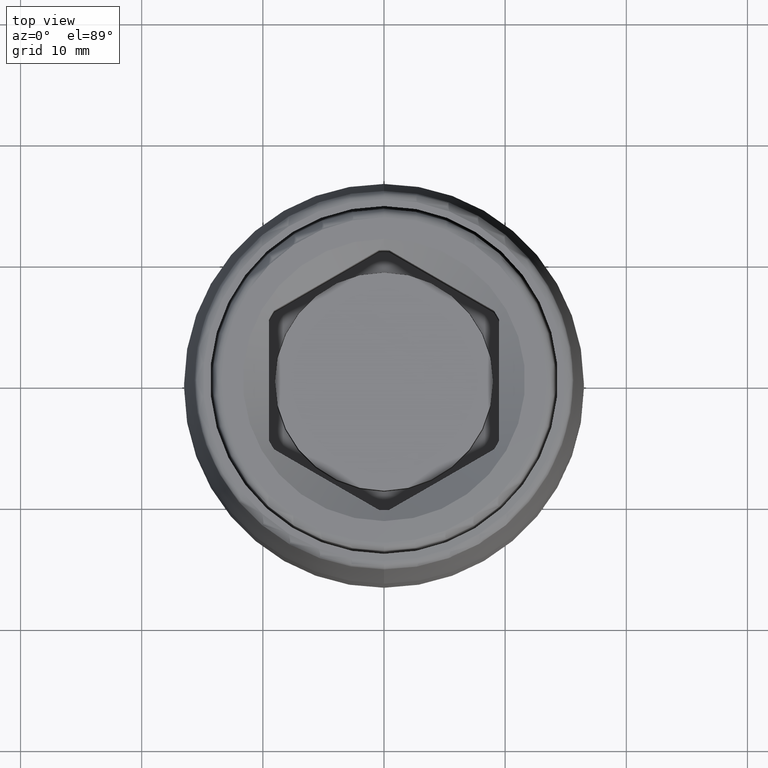
[diagram: clean part render]
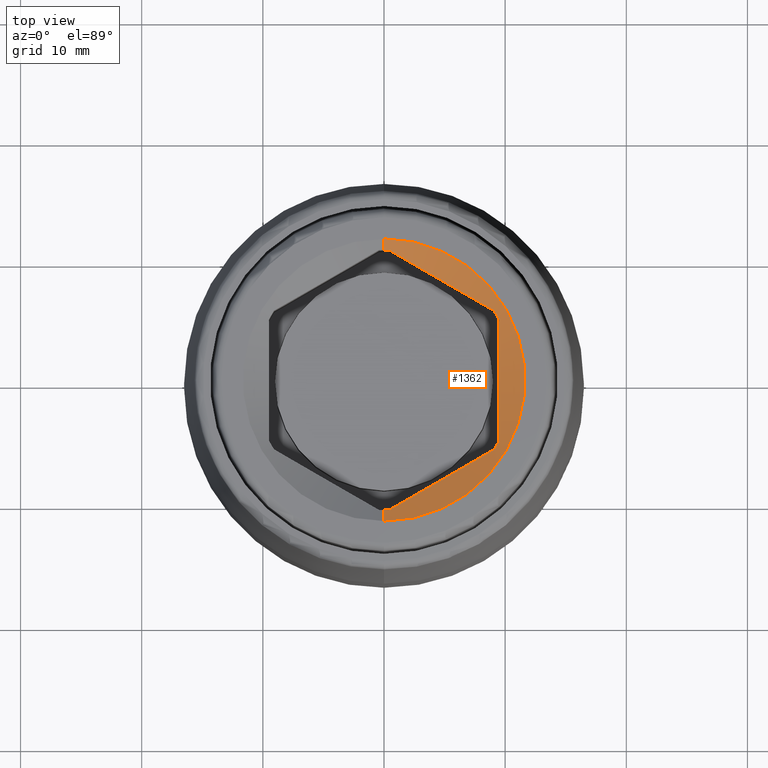
[diagram: same view with one face highlighted and labeled with its STEP entity id]
A machine part, top view. The second image highlights one B-rep face of the part: STEP entity #1362.
In plain terms, the highlighted conical surface has half-angle 60 deg.
Its self-contained STEP definition (entity closure, byte-faithful):
#58=DIRECTION('',(0.E0,-8.660254037844E-1,5.E-1));
#59=VECTOR('',#58,1.056550992617E0);
#60=CARTESIAN_POINT('',(0.E0,-1.0735E1,3.747172450369E1));
#61=LINE('',#60,#59);
#62=DIRECTION('',(0.E0,8.660254037844E-1,5.E-1));
#63=VECTOR('',#62,1.056550992617E0);
#64=CARTESIAN_POINT('',(0.E0,1.0735E1,3.747172450369E1));
#65=LINE('',#64,#63);
#154=CARTESIAN_POINT('',(0.E0,0.E0,3.747172450369E1));
#155=DIRECTION('',(0.E0,0.E0,1.E0));
#156=DIRECTION('',(3.919139298327E-2,9.992317222327E-1,0.E0));
#157=AXIS2_PLACEMENT_3D('',#154,#155,#156);
#168=CARTESIAN_POINT('',(0.E0,0.E0,3.747172450369E1));
#169=DIRECTION('',(0.E0,0.E0,1.E0));
#170=DIRECTION('',(0.E0,-1.E0,0.E0));
#171=AXIS2_PLACEMENT_3D('',#168,#169,#170);
#206=CARTESIAN_POINT('',(9.079280396325E0,-5.727730133737E0,3.747172450369E1));
#207=CARTESIAN_POINT('',(8.649952098188E0,-5.975602942237E0,3.733843949942E1));
#208=CARTESIAN_POINT('',(7.802883339064E0,-6.464658318339E0,3.710690814906E1));
#209=CARTESIAN_POINT('',(6.580214498321E0,-7.170566502672E0,3.687409742572E1));
#210=CARTESIAN_POINT('',(5.359891539634E0,-7.875120291368E0,3.675368202986E1));
#211=CARTESIAN_POINT('',(4.140106761944E0,-8.579363361121E0,3.675368205119E1));
#212=CARTESIAN_POINT('',(2.919781804618E0,-9.283918303731E0,3.687409796258E1));
#213=CARTESIAN_POINT('',(1.697114961940E0,-9.989825334481E0,3.710690861353E1));
#214=CARTESIAN_POINT('',(8.500472244717E-1,-1.047888012073E1,3.733843970970E1));
#215=CARTESIAN_POINT('',(4.207196036754E-1,-1.072675253817E1,3.747172450369E1));
#221=CARTESIAN_POINT('',(0.E0,0.E0,3.747172450369E1));
#222=DIRECTION('',(0.E0,0.E0,1.E0));
#223=DIRECTION('',(8.457643592291E-1,-5.335566030495E-1,0.E0));
#224=AXIS2_PLACEMENT_3D('',#221,#222,#223);
#230=CARTESIAN_POINT('',(9.5E0,4.999022404431E0,3.747172450369E1));
#231=CARTESIAN_POINT('',(9.5E0,4.503276358970E0,3.733843938423E1));
#232=CARTESIAN_POINT('',(9.5E0,3.525165048507E0,3.710690795781E1));
#233=CARTESIAN_POINT('',(9.5E0,2.113349740460E0,3.687409745813E1));
#234=CARTESIAN_POINT('',(9.5E0,7.042423749558E-1,3.675368204065E1));
#235=CARTESIAN_POINT('',(9.5E0,-7.042435590032E-1,3.675368204858E1));
#236=CARTESIAN_POINT('',(9.5E0,-2.113352474044E0,3.687409780376E1));
#237=CARTESIAN_POINT('',(9.5E0,-3.525166145713E0,3.710690822457E1));
#238=CARTESIAN_POINT('',(9.5E0,-4.503276794482E0,3.733843950132E1));
#239=CARTESIAN_POINT('',(9.5E0,-4.999022404431E0,3.747172450369E1));
#245=CARTESIAN_POINT('',(0.E0,0.E0,3.747172450369E1));
#246=DIRECTION('',(0.E0,0.E0,1.E0));
#247=DIRECTION('',(8.849557522124E-1,4.656751191831E-1,0.E0));
#248=AXIS2_PLACEMENT_3D('',#245,#246,#247);
#254=CARTESIAN_POINT('',(4.207196036754E-1,1.072675253817E1,3.747172450369E1));
#255=CARTESIAN_POINT('',(8.500473241885E-1,1.047888006316E1,3.733843967875E1));
#256=CARTESIAN_POINT('',(1.697115248215E0,9.989825169200E0,3.710690850424E1));
#257=CARTESIAN_POINT('',(2.919783786532E0,9.283917159473E0,3.687409766312E1));
#258=CARTESIAN_POINT('',(4.140107606194E0,8.579362873693E0,3.675368204670E1));
#259=CARTESIAN_POINT('',(5.359892527726E0,7.875119720893E0,3.675368203440E1));
#260=CARTESIAN_POINT('',(6.580216863321E0,7.170565137238E0,3.687409776508E1));
#261=CARTESIAN_POINT('',(7.802884562943E0,6.464657611732E0,3.710690847715E1));
#262=CARTESIAN_POINT('',(8.649952592891E0,5.975602656620E0,3.733843965300E1));
#263=CARTESIAN_POINT('',(9.079280396325E0,5.727730133737E0,3.747172450369E1));
#269=CARTESIAN_POINT('',(0.E0,0.E0,3.8E1));
#270=DIRECTION('',(0.E0,0.E0,-1.E0));
#271=DIRECTION('',(0.E0,1.E0,0.E0));
#272=AXIS2_PLACEMENT_3D('',#269,#270,#271);
#1149=CARTESIAN_POINT('',(0.E0,-1.0735E1,3.747172450369E1));
#1150=CARTESIAN_POINT('',(4.207196036754E-1,-1.072675253817E1,
3.747172450369E1));
#1151=VERTEX_POINT('',#1149);
#1152=VERTEX_POINT('',#1150);
#1153=VERTEX_POINT('',#206);
#1154=CARTESIAN_POINT('',(9.5E0,-4.999022404431E0,3.747172450369E1));
#1155=VERTEX_POINT('',#1154);
#1156=VERTEX_POINT('',#230);
#1157=CARTESIAN_POINT('',(9.079280396325E0,5.727730133737E0,3.747172450369E1));
#1158=VERTEX_POINT('',#1157);
#1159=VERTEX_POINT('',#254);
#1160=CARTESIAN_POINT('',(0.E0,1.0735E1,3.747172450369E1));
#1161=VERTEX_POINT('',#1160);
#1165=CARTESIAN_POINT('',(0.E0,1.165E1,3.8E1));
#1166=CARTESIAN_POINT('',(0.E0,-1.165E1,3.8E1));
#1167=VERTEX_POINT('',#1165);
#1168=VERTEX_POINT('',#1166);
#1338=CARTESIAN_POINT('',(0.E0,0.E0,3.737720049897E1));
#1339=DIRECTION('',(0.E0,0.E0,1.E0));
#1340=DIRECTION('',(0.E0,1.E0,0.E0));
#1341=AXIS2_PLACEMENT_3D('',#1338,#1339,#1340);
#1342=CONICAL_SURFACE('',#1341,1.057127962128E1,6.E1);
#1344=ORIENTED_EDGE('',*,*,#1343,.T.);
#1346=ORIENTED_EDGE('',*,*,#1345,.F.);
#1348=ORIENTED_EDGE('',*,*,#1347,.T.);
#1350=ORIENTED_EDGE('',*,*,#1349,.F.);
#1352=ORIENTED_EDGE('',*,*,#1351,.T.);
#1354=ORIENTED_EDGE('',*,*,#1353,.F.);
#1355=ORIENTED_EDGE('',*,*,#1328,.T.);
#1356=ORIENTED_EDGE('',*,*,#1250,.T.);
#1358=ORIENTED_EDGE('',*,*,#1357,.T.);
#1359=ORIENTED_EDGE('',*,*,#1246,.F.);
#1360=EDGE_LOOP('',(#1344,#1346,#1348,#1350,#1352,#1354,#1355,#1356,#1358,
#1359));
#1361=FACE_OUTER_BOUND('',#1360,.F.);
#1362=ADVANCED_FACE('',(#1361),#1342,.F.);
#158=CIRCLE('',#157,1.0735E1);
#172=CIRCLE('',#171,1.0735E1);
#216=B_SPLINE_CURVE_WITH_KNOTS('',3,(#206,#207,#208,#209,#210,#211,#212,#213,
#214,#215),.UNSPECIFIED.,.F.,.F.,(4,1,1,1,1,1,1,4),(0.E0,1.428571428571E-1,
2.857142857143E-1,4.285714285714E-1,5.714285714286E-1,7.142857142857E-1,
8.571428571429E-1,1.E0),.UNSPECIFIED.);
#225=CIRCLE('',#224,1.0735E1);
#240=B_SPLINE_CURVE_WITH_KNOTS('',3,(#230,#231,#232,#233,#234,#235,#236,#237,
#238,#239),.UNSPECIFIED.,.F.,.F.,(4,1,1,1,1,1,1,4),(0.E0,1.428571428571E-1,
2.857142857143E-1,4.285714285714E-1,5.714285714286E-1,7.142857142857E-1,
8.571428571429E-1,1.E0),.UNSPECIFIED.);
#249=CIRCLE('',#248,1.0735E1);
#264=B_SPLINE_CURVE_WITH_KNOTS('',3,(#254,#255,#256,#257,#258,#259,#260,#261,
#262,#263),.UNSPECIFIED.,.F.,.F.,(4,1,1,1,1,1,1,4),(0.E0,1.428571428571E-1,
2.857142857143E-1,4.285714285714E-1,5.714285714286E-1,7.142857142857E-1,
8.571428571429E-1,1.E0),.UNSPECIFIED.);
#273=CIRCLE('',#272,1.165E1);
#1246=EDGE_CURVE('',#1151,#1168,#61,.T.);
#1250=EDGE_CURVE('',#1161,#1167,#65,.T.);
#1328=EDGE_CURVE('',#1159,#1161,#158,.T.);
#1343=EDGE_CURVE('',#1151,#1152,#172,.T.);
#1345=EDGE_CURVE('',#1153,#1152,#216,.T.);
#1347=EDGE_CURVE('',#1153,#1155,#225,.T.);
#1349=EDGE_CURVE('',#1156,#1155,#240,.T.);
#1351=EDGE_CURVE('',#1156,#1158,#249,.T.);
#1353=EDGE_CURVE('',#1159,#1158,#264,.T.);
#1357=EDGE_CURVE('',#1167,#1168,#273,.T.);